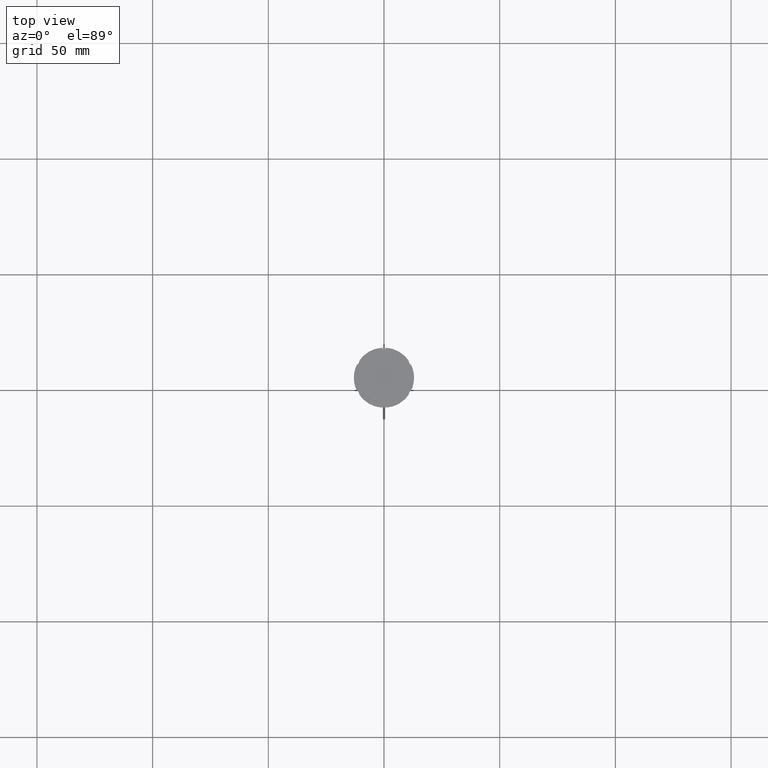
[diagram: clean part render]
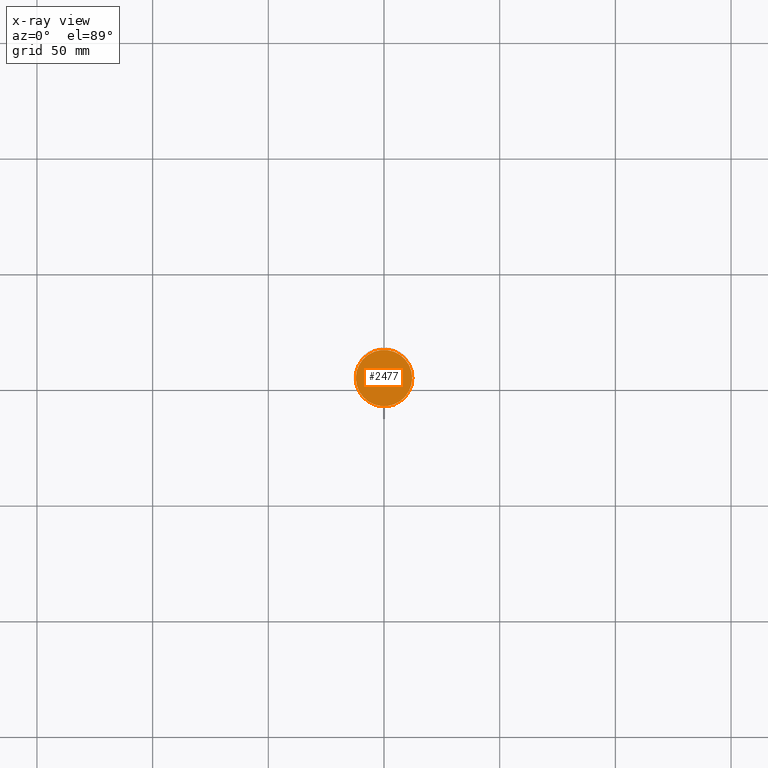
[diagram: x-ray — body ghosted, one internal face saturated and labeled with its STEP entity id]
A machine part, top view, then the same camera in x-ray: the body is ghosted and one INTERNAL B-rep face — a face not visible from any outside direction — is saturated and labeled: STEP entity #2477.
In plain terms, the highlighted planar face has unit normal (0, 0, -1).
Its self-contained STEP definition (entity closure, byte-faithful):
#31 = CARTESIAN_POINT ( 'NONE',  ( 0.000000000000000000, 0.000000000000000000, -12.00000000000000000 ) ) ;
#56 = DIRECTION ( 'NONE',  ( -0.000000000000000000, -0.000000000000000000, 1.000000000000000000 ) ) ;
#97 = ORIENTED_EDGE ( 'NONE', *, *, #1394, .T. ) ;
#132 = AXIS2_PLACEMENT_3D ( 'NONE', #2724, #1811, #2043 ) ;
#254 = CARTESIAN_POINT ( 'NONE',  ( 12.20000000000000639, 1.512438796946981880E-15, -12.00000000000000000 ) ) ;
#266 = AXIS2_PLACEMENT_3D ( 'NONE', #280, #2740, #533 ) ;
#280 = CARTESIAN_POINT ( 'NONE',  ( 0.000000000000000000, 0.000000000000000000, -12.00000000000000000 ) ) ;
#386 = EDGE_LOOP ( 'NONE', ( #97, #1013 ) ) ;
#509 = PLANE ( 'NONE',  #132 ) ;
#533 = DIRECTION ( 'NONE',  ( -1.000000000000000000, 0.000000000000000000, 0.000000000000000000 ) ) ;
#555 = VERTEX_POINT ( 'NONE', #2358 ) ;
#915 = DIRECTION ( 'NONE',  ( -1.000000000000000000, 0.000000000000000000, 0.000000000000000000 ) ) ;
#1013 = ORIENTED_EDGE ( 'NONE', *, *, #1025, .T. ) ;
#1025 = EDGE_CURVE ( 'NONE', #2450, #555, #1932, .T. ) ;
#1394 = EDGE_CURVE ( 'NONE', #555, #2450, #1937, .T. ) ;
#1627 = FACE_OUTER_BOUND ( 'NONE', #386, .T. ) ;
#1811 = DIRECTION ( 'NONE',  ( 0.000000000000000000, 0.000000000000000000, -1.000000000000000000 ) ) ;
#1932 = CIRCLE ( 'NONE', #266, 12.20000000000000639 ) ;
#1937 = CIRCLE ( 'NONE', #2168, 12.20000000000000639 ) ;
#2043 = DIRECTION ( 'NONE',  ( -1.000000000000000000, 0.000000000000000000, -0.000000000000000000 ) ) ;
#2168 = AXIS2_PLACEMENT_3D ( 'NONE', #31, #56, #915 ) ;
#2358 = CARTESIAN_POINT ( 'NONE',  ( -12.20000000000000639, 0.000000000000000000, -12.00000000000000000 ) ) ;
#2450 = VERTEX_POINT ( 'NONE', #254 ) ;
#2477 = ADVANCED_FACE ( 'NONE', ( #1627 ), #509, .F. ) ;
#2724 = CARTESIAN_POINT ( 'NONE',  ( 0.000000000000000000, 0.000000000000000000, -12.00000000000000000 ) ) ;
#2740 = DIRECTION ( 'NONE',  ( -0.000000000000000000, -0.000000000000000000, 1.000000000000000000 ) ) ;